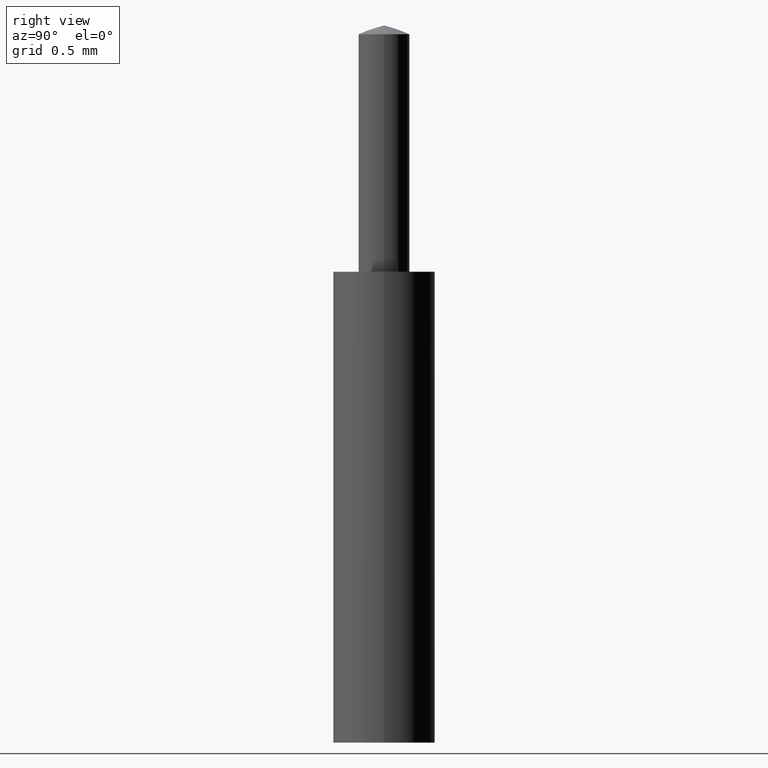
[diagram: clean part render]
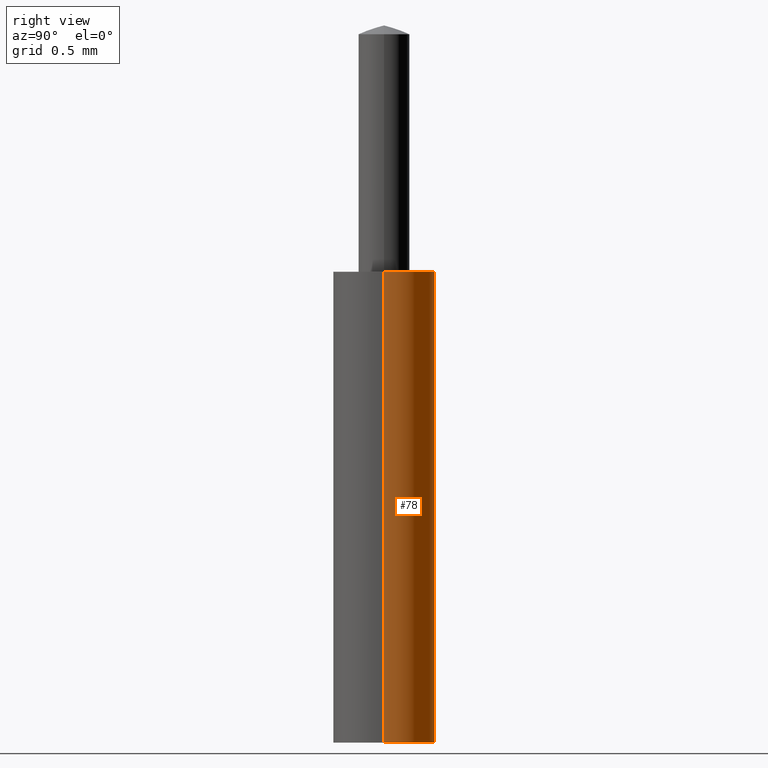
[diagram: same view with one face highlighted and labeled with its STEP entity id]
A machine part, right view. The second image highlights one B-rep face of the part: STEP entity #78.
In plain terms, the highlighted cylindrical surface (partial cylindrical patch) has radius 0.254 mm, axis along (-0, -0, -1).
Its self-contained STEP definition (entity closure, byte-faithful):
#25 = AXIS2_PLACEMENT_3D ( 'NONE', #255, #251, #247 ) ;
#42 = AXIS2_PLACEMENT_3D ( 'NONE', #293, #294, #291 ) ;
#46 = AXIS2_PLACEMENT_3D ( 'NONE', #272, #269, #270 ) ;
#52 = EDGE_CURVE ( 'NONE', #174, #172, #223, .T. ) ;
#54 = EDGE_CURVE ( 'NONE', #172, #160, #196, .T. ) ;
#58 = EDGE_CURVE ( 'NONE', #157, #160, #202, .T. ) ;
#59 = EDGE_CURVE ( 'NONE', #174, #157, #221, .T. ) ;
#78 = ADVANCED_FACE ( 'NONE', ( #108 ), #129, .T. ) ;
#108 = FACE_OUTER_BOUND ( 'NONE', #146, .T. ) ;
#129 = CYLINDRICAL_SURFACE ( 'NONE', #25, 0.01000000000000000000 ) ;
#145 = ORIENTED_EDGE ( 'NONE', *, *, #54, .T. ) ;
#146 = EDGE_LOOP ( 'NONE', ( #170, #145, #167, #233 ) ) ;
#157 = VERTEX_POINT ( 'NONE', #256 ) ;
#160 = VERTEX_POINT ( 'NONE', #341 ) ;
#163 = VECTOR ( 'NONE', #331, 39.37007874015748100 ) ;
#167 = ORIENTED_EDGE ( 'NONE', *, *, #58, .F. ) ;
#170 = ORIENTED_EDGE ( 'NONE', *, *, #52, .T. ) ;
#172 = VERTEX_POINT ( 'NONE', #329 ) ;
#174 = VERTEX_POINT ( 'NONE', #262 ) ;
#176 = VECTOR ( 'NONE', #342, 39.37007874015748100 ) ;
#196 = LINE ( 'NONE', #271, #163 ) ;
#202 = CIRCLE ( 'NONE', #42, 0.01000000000000000000 ) ;
#221 = LINE ( 'NONE', #292, #176 ) ;
#223 = CIRCLE ( 'NONE', #46, 0.01000000000000000000 ) ;
#233 = ORIENTED_EDGE ( 'NONE', *, *, #59, .F. ) ;
#247 = DIRECTION ( 'NONE',  ( -1.000000000000000000, 0.0000000000000000000, 0.0000000000000000000 ) ) ;
#251 = DIRECTION ( 'NONE',  ( -0.0000000000000000000, -0.0000000000000000000, -1.000000000000000000 ) ) ;
#255 = CARTESIAN_POINT ( 'NONE',  ( 0.0000000000000000000, 0.0000000000000000000, 0.0000000000000000000 ) ) ;
#256 = CARTESIAN_POINT ( 'NONE',  ( -0.01000000000000000000, 0.0000000000000000000, 0.0000000000000000000 ) ) ;
#262 = CARTESIAN_POINT ( 'NONE',  ( -0.01000000000000000000, 0.0000000000000000000, 0.09224620568251602800 ) ) ;
#269 = DIRECTION ( 'NONE',  ( -0.0000000000000000000, -0.0000000000000000000, -1.000000000000000000 ) ) ;
#270 = DIRECTION ( 'NONE',  ( -1.000000000000000000, 0.0000000000000000000, 0.0000000000000000000 ) ) ;
#271 = CARTESIAN_POINT ( 'NONE',  ( 0.01000000000000000000, 1.224646799147353400E-018, 0.0000000000000000000 ) ) ;
#272 = CARTESIAN_POINT ( 'NONE',  ( 0.0000000000000000000, 0.0000000000000000000, 0.09224620568251602800 ) ) ;
#291 = DIRECTION ( 'NONE',  ( -1.000000000000000000, 0.0000000000000000000, 0.0000000000000000000 ) ) ;
#292 = CARTESIAN_POINT ( 'NONE',  ( -0.01000000000000000000, 0.0000000000000000000, 0.0000000000000000000 ) ) ;
#293 = CARTESIAN_POINT ( 'NONE',  ( 0.0000000000000000000, 0.0000000000000000000, 0.0000000000000000000 ) ) ;
#294 = DIRECTION ( 'NONE',  ( -0.0000000000000000000, -0.0000000000000000000, -1.000000000000000000 ) ) ;
#329 = CARTESIAN_POINT ( 'NONE',  ( 0.01000000000000000000, 1.224646799147353400E-018, 0.09224620568251602800 ) ) ;
#331 = DIRECTION ( 'NONE',  ( -0.0000000000000000000, -0.0000000000000000000, -1.000000000000000000 ) ) ;
#341 = CARTESIAN_POINT ( 'NONE',  ( 0.01000000000000000000, 1.224646799147353400E-018, 0.0000000000000000000 ) ) ;
#342 = DIRECTION ( 'NONE',  ( -0.0000000000000000000, -0.0000000000000000000, -1.000000000000000000 ) ) ;